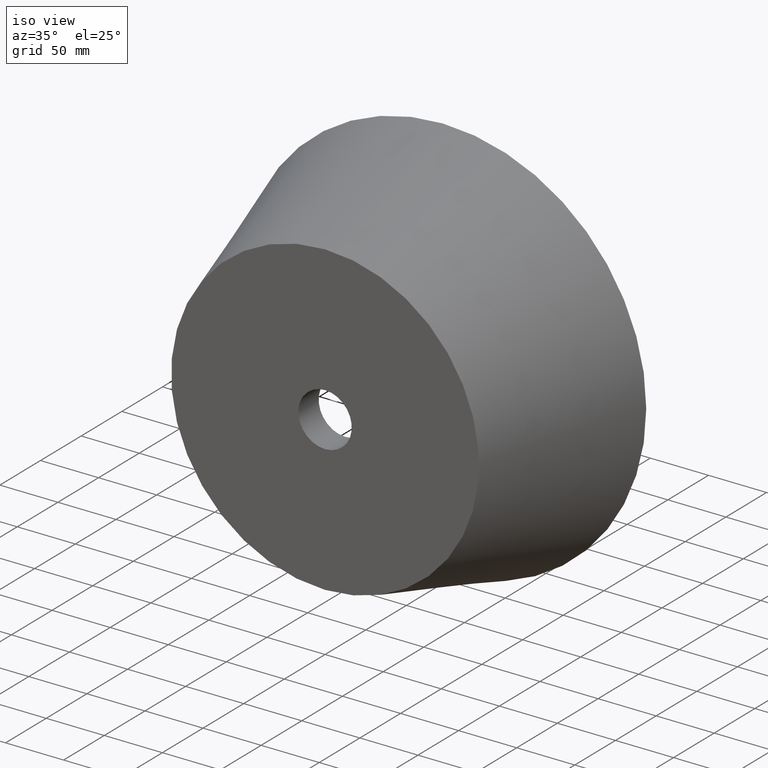
[diagram: clean part render]
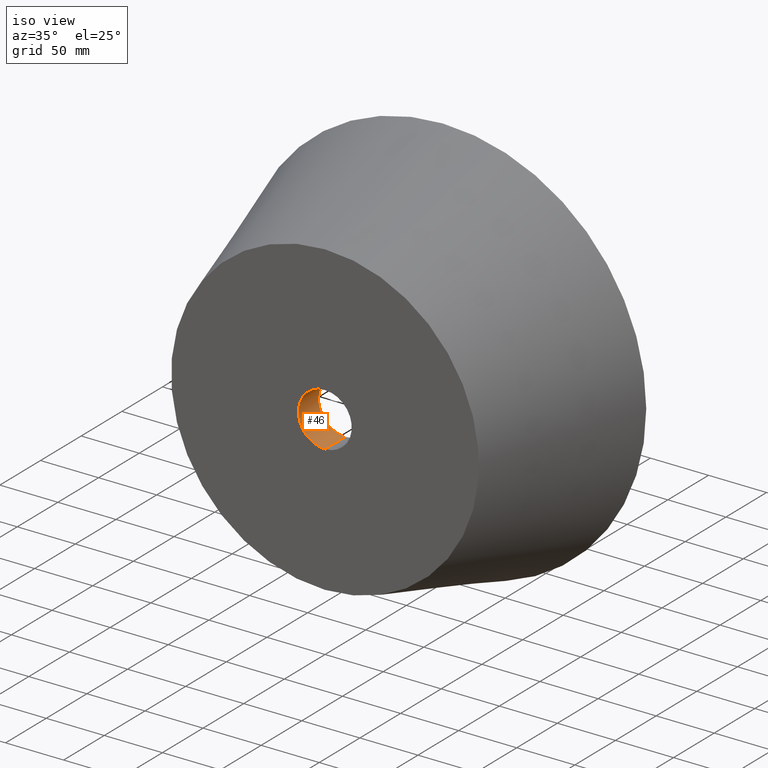
[diagram: same view with one face highlighted and labeled with its STEP entity id]
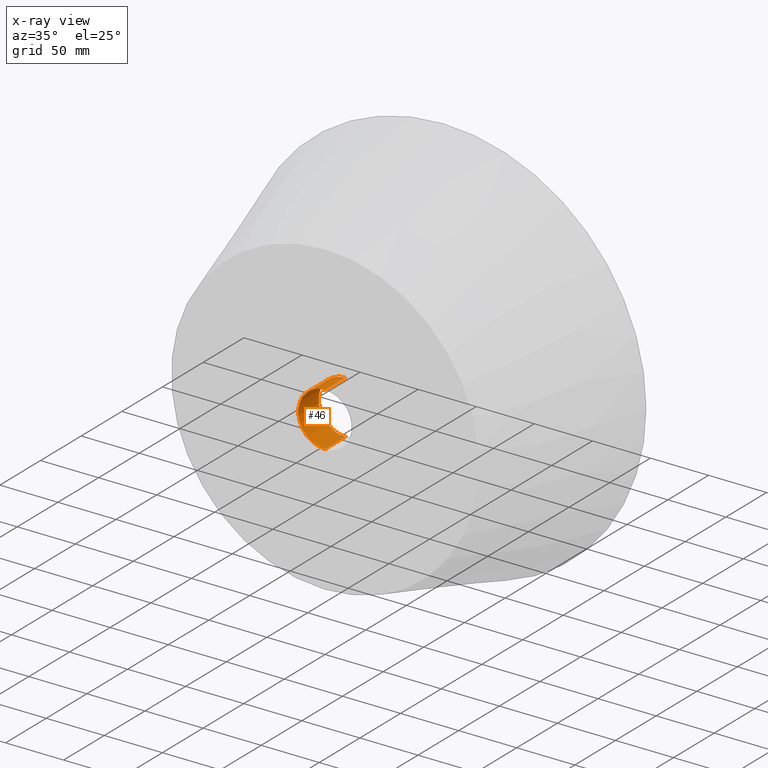
[diagram: x-ray of the same camera — body ghosted, the highlighted face saturated]
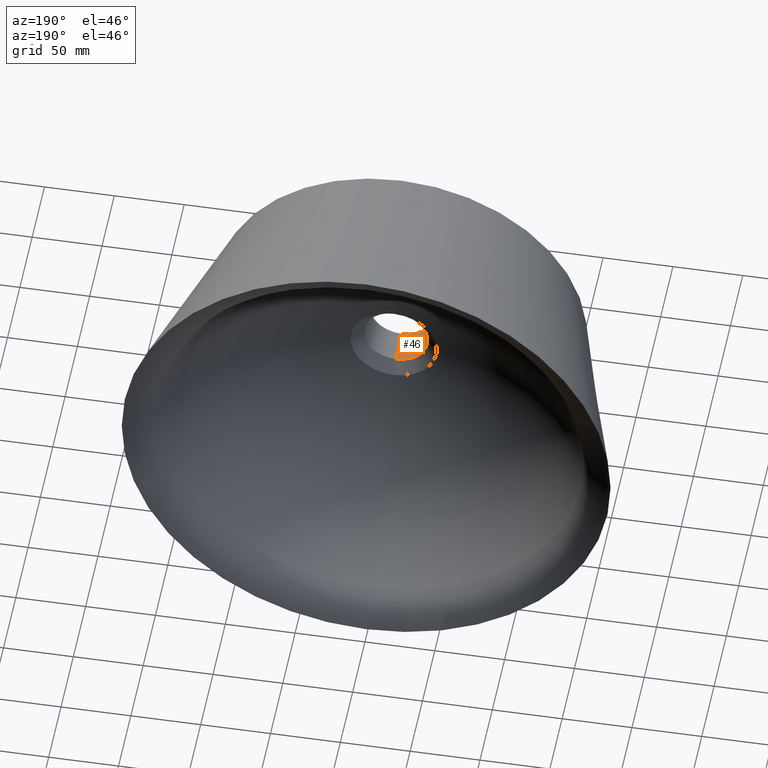
[diagram: same view with one face highlighted and labeled with its STEP entity id]
A machine part, iso view. The second image highlights one B-rep face of the part: STEP entity #46.
The next image is the same camera in x-ray: the body ghosted, the highlighted face saturated — about 0% of this face is hidden behind the body in this view.
A second angle (auxiliary view) of the same face is appended — the face is thin or edge-on in the first view.
In plain terms, the highlighted cylindrical surface (edge-blend (fillet) strip) has radius 23 mm, axis along (-0, -1, -0).
Its self-contained STEP definition (entity closure, byte-faithful):
#4 = DIRECTION ( 'NONE',  ( 0.0000000000000000000, 0.0000000000000000000, -1.000000000000000000 ) ) ;
#23 = ORIENTED_EDGE ( 'NONE', *, *, #212, .T. ) ;
#32 = EDGE_LOOP ( 'NONE', ( #238, #23, #233, #66 ) ) ;
#40 = AXIS2_PLACEMENT_3D ( 'NONE', #224, #52, #352 ) ;
#46 = ADVANCED_FACE ( 'NONE', ( #319 ), #157, .F. ) ;
#52 = DIRECTION ( 'NONE',  ( -0.0000000000000000000, -1.000000000000000000, -0.0000000000000000000 ) ) ;
#57 = LINE ( 'NONE', #215, #226 ) ;
#66 = ORIENTED_EDGE ( 'NONE', *, *, #273, .F. ) ;
#93 = AXIS2_PLACEMENT_3D ( 'NONE', #179, #335, #4 ) ;
#96 = CARTESIAN_POINT ( 'NONE',  ( 2.816687638038912400E-015, 0.0000000000000000000, 23.00000000000000000 ) ) ;
#101 = VERTEX_POINT ( 'NONE', #325 ) ;
#102 = LINE ( 'NONE', #96, #261 ) ;
#117 = CIRCLE ( 'NONE', #195, 23.00000000000000000 ) ;
#153 = DIRECTION ( 'NONE',  ( -0.0000000000000000000, -1.000000000000000000, -0.0000000000000000000 ) ) ;
#157 = CYLINDRICAL_SURFACE ( 'NONE', #93, 23.00000000000000000 ) ;
#158 = EDGE_CURVE ( 'NONE', #222, #166, #160, .T. ) ;
#160 = CIRCLE ( 'NONE', #40, 23.00000000000000400 ) ;
#166 = VERTEX_POINT ( 'NONE', #202 ) ;
#176 = CARTESIAN_POINT ( 'NONE',  ( 0.0000000000000000000, 25.00000000000001400, -23.00000000000000000 ) ) ;
#179 = CARTESIAN_POINT ( 'NONE',  ( 0.0000000000000000000, 0.0000000000000000000, 0.0000000000000000000 ) ) ;
#183 = EDGE_CURVE ( 'NONE', #101, #333, #117, .T. ) ;
#195 = AXIS2_PLACEMENT_3D ( 'NONE', #321, #337, #255 ) ;
#202 = CARTESIAN_POINT ( 'NONE',  ( 0.0000000000000000000, 1.040834085586084300E-014, -23.00000000000000400 ) ) ;
#212 = EDGE_CURVE ( 'NONE', #101, #222, #102, .T. ) ;
#215 = CARTESIAN_POINT ( 'NONE',  ( 0.0000000000000000000, 0.0000000000000000000, -23.00000000000000000 ) ) ;
#222 = VERTEX_POINT ( 'NONE', #276 ) ;
#224 = CARTESIAN_POINT ( 'NONE',  ( 0.0000000000000000000, 1.040834085586084300E-014, 0.0000000000000000000 ) ) ;
#226 = VECTOR ( 'NONE', #153, 1000.000000000000000 ) ;
#233 = ORIENTED_EDGE ( 'NONE', *, *, #158, .T. ) ;
#238 = ORIENTED_EDGE ( 'NONE', *, *, #183, .F. ) ;
#255 = DIRECTION ( 'NONE',  ( 0.0000000000000000000, 0.0000000000000000000, -1.000000000000000000 ) ) ;
#261 = VECTOR ( 'NONE', #310, 1000.000000000000000 ) ;
#273 = EDGE_CURVE ( 'NONE', #333, #166, #57, .T. ) ;
#276 = CARTESIAN_POINT ( 'NONE',  ( 2.816687638038913100E-015, 1.040834085586084300E-014, 23.00000000000000400 ) ) ;
#310 = DIRECTION ( 'NONE',  ( -0.0000000000000000000, -1.000000000000000000, -0.0000000000000000000 ) ) ;
#319 = FACE_OUTER_BOUND ( 'NONE', #32, .T. ) ;
#321 = CARTESIAN_POINT ( 'NONE',  ( 0.0000000000000000000, 25.00000000000001400, 0.0000000000000000000 ) ) ;
#325 = CARTESIAN_POINT ( 'NONE',  ( 2.816687638038912400E-015, 25.00000000000001400, 23.00000000000000000 ) ) ;
#333 = VERTEX_POINT ( 'NONE', #176 ) ;
#335 = DIRECTION ( 'NONE',  ( -0.0000000000000000000, -1.000000000000000000, -0.0000000000000000000 ) ) ;
#337 = DIRECTION ( 'NONE',  ( -0.0000000000000000000, -1.000000000000000000, -0.0000000000000000000 ) ) ;
#352 = DIRECTION ( 'NONE',  ( 0.0000000000000000000, 0.0000000000000000000, -1.000000000000000000 ) ) ;